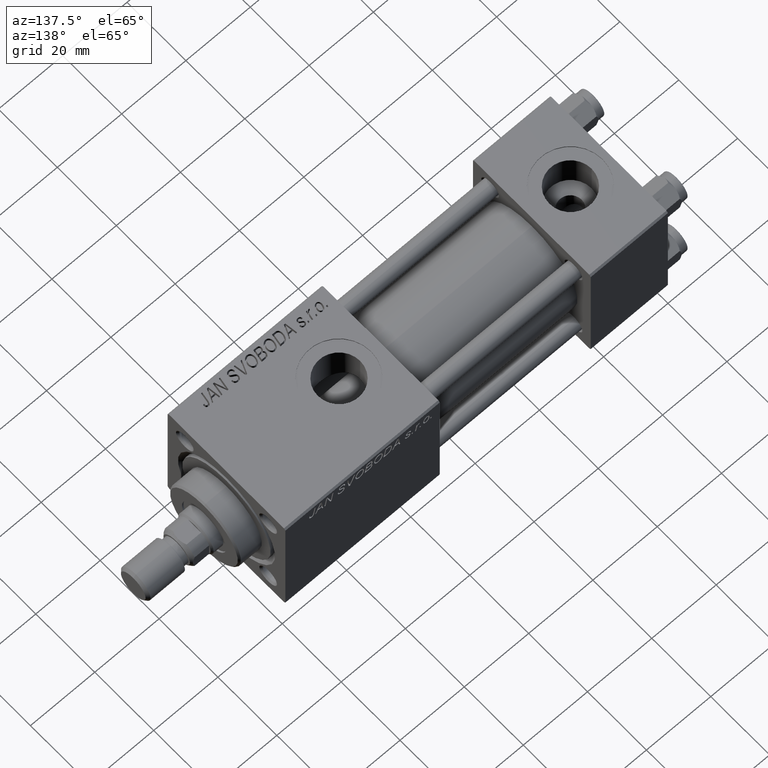
[diagram: clean part render]
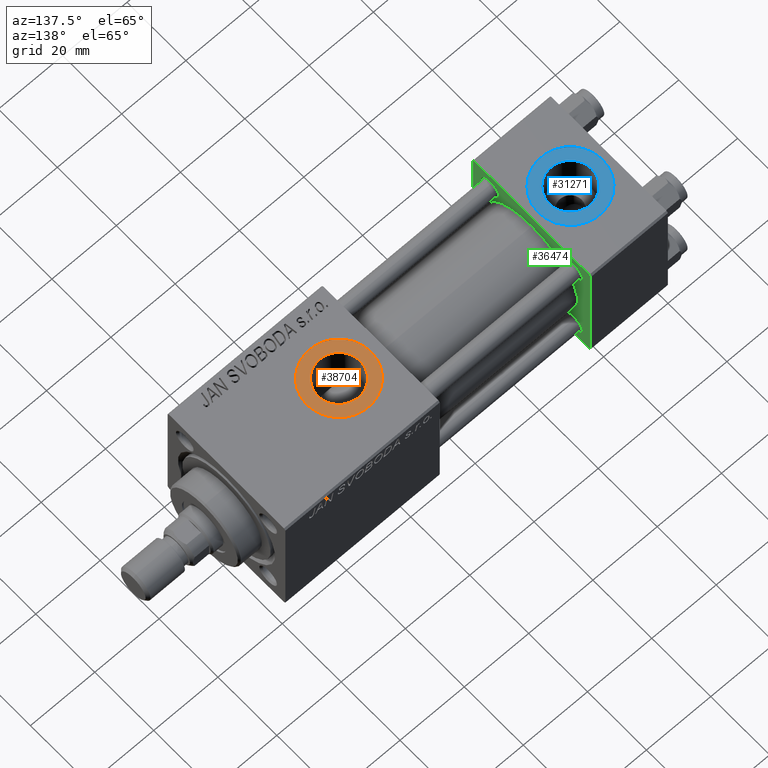
[diagram: same view with three faces highlighted in distinct colors, each labeled with its STEP entity id]
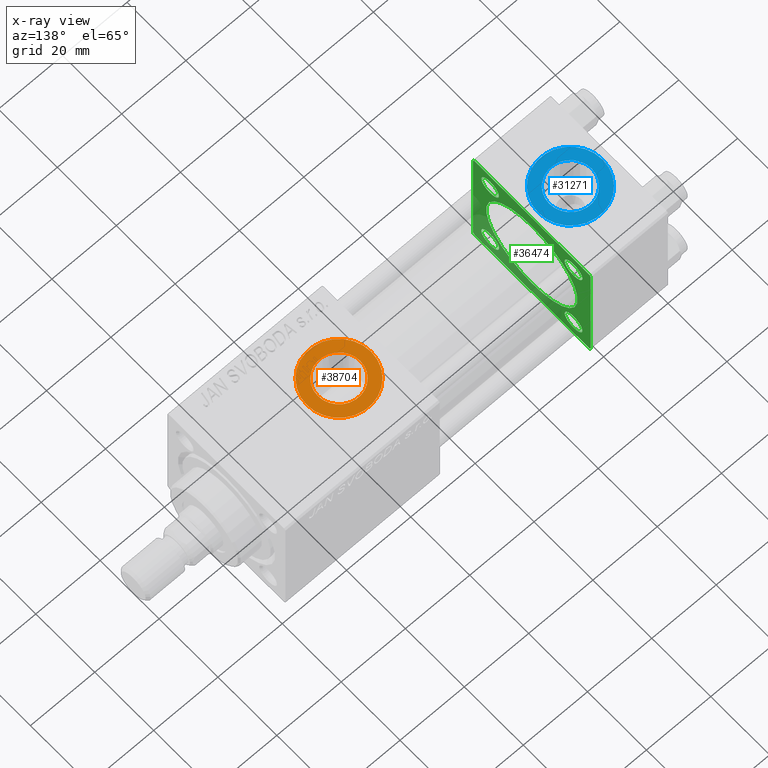
[diagram: x-ray of the same camera — body ghosted, the three highlighted faces saturated]
A machine part, auxiliary view with three faces highlighted in distinct colors.
The next image is the same camera in x-ray (body ghosted, the three faces saturated) — at least one of them is partly hidden behind the body in this view.
Their STEP definitions:

[orange] entity #38704 — the highlighted planar face has unit normal (0, 0, 1).
#3603 = EDGE_CURVE ( 'NONE', #16706, #14455, #50711, .T. ) ;
#4652 = CARTESIAN_POINT ( 'NONE',  ( 84.00000000000000000, -1.734723475976806897E-15, 19.80000000000000071 ) ) ;
#4914 = PLANE ( 'NONE',  #28643 ) ;
#5788 = ORIENTED_EDGE ( 'NONE', *, *, #50799, .T. ) ;
#6205 = DIRECTION ( 'NONE',  ( 1.000000000000000000, 0.000000000000000000, 0.000000000000000000 ) ) ;
#11821 = ORIENTED_EDGE ( 'NONE', *, *, #33528, .T. ) ;
#12574 = EDGE_CURVE ( 'NONE', #36461, #34232, #32161, .T. ) ;
#14026 = ORIENTED_EDGE ( 'NONE', *, *, #12574, .T. ) ;
#14455 = VERTEX_POINT ( 'NONE', #14683 ) ;
#14683 = CARTESIAN_POINT ( 'NONE',  ( 94.00000000000154898, -1.734723475976806897E-15, 19.80000000000000071 ) ) ;
#16272 = EDGE_LOOP ( 'NONE', ( #5788, #37460 ) ) ;
#16706 = VERTEX_POINT ( 'NONE', #19963 ) ;
#17561 = AXIS2_PLACEMENT_3D ( 'NONE', #35855, #19889, #39849 ) ;
#19889 = DIRECTION ( 'NONE',  ( -0.000000000000000000, -0.000000000000000000, -1.000000000000000000 ) ) ;
#19963 = CARTESIAN_POINT ( 'NONE',  ( 73.99999999999845102, -5.100766768292640183E-16, 19.80000000000000071 ) ) ;
#21134 = DIRECTION ( 'NONE',  ( 1.000000000000000000, 0.000000000000000000, -0.000000000000000000 ) ) ;
#24830 = DIRECTION ( 'NONE',  ( 0.000000000000000000, 0.000000000000000000, 1.000000000000000000 ) ) ;
#25447 = CARTESIAN_POINT ( 'NONE',  ( 77.41999999999846693, -1.734723475976806897E-15, 19.80000000000000071 ) ) ;
#25812 = EDGE_LOOP ( 'NONE', ( #14026, #11821 ) ) ;
#26137 = CARTESIAN_POINT ( 'NONE',  ( 84.00000000000000000, -1.734723475976806897E-15, 19.80000000000000071 ) ) ;
#28643 = AXIS2_PLACEMENT_3D ( 'NONE', #4652, #41085, #21134 ) ;
#29363 = FACE_BOUND ( 'NONE', #25812, .T. ) ;
#29444 = CIRCLE ( 'NONE', #17561, 6.580000000001542837 ) ;
#32161 = CIRCLE ( 'NONE', #46654, 6.580000000001542837 ) ;
#33063 = DIRECTION ( 'NONE',  ( 1.000000000000000000, 0.000000000000000000, 0.000000000000000000 ) ) ;
#33528 = EDGE_CURVE ( 'NONE', #34232, #36461, #29444, .T. ) ;
#33892 = DIRECTION ( 'NONE',  ( 1.000000000000000000, 0.000000000000000000, 0.000000000000000000 ) ) ;
#34232 = VERTEX_POINT ( 'NONE', #51885 ) ;
#35855 = CARTESIAN_POINT ( 'NONE',  ( 84.00000000000000000, -1.734723475976806897E-15, 19.80000000000000071 ) ) ;
#36461 = VERTEX_POINT ( 'NONE', #25447 ) ;
#37234 = AXIS2_PLACEMENT_3D ( 'NONE', #26137, #39167, #6205 ) ;
#37460 = ORIENTED_EDGE ( 'NONE', *, *, #3603, .T. ) ;
#38681 = CARTESIAN_POINT ( 'NONE',  ( 84.00000000000000000, -1.734723475976806897E-15, 19.80000000000000071 ) ) ;
#38704 = ADVANCED_FACE ( 'NONE', ( #29363, #52357 ), #4914, .T. ) ;
#39167 = DIRECTION ( 'NONE',  ( 0.000000000000000000, 0.000000000000000000, 1.000000000000000000 ) ) ;
#39849 = DIRECTION ( 'NONE',  ( 1.000000000000000000, 0.000000000000000000, 0.000000000000000000 ) ) ;
#41085 = DIRECTION ( 'NONE',  ( 0.000000000000000000, 0.000000000000000000, 1.000000000000000000 ) ) ;
#44038 = CIRCLE ( 'NONE', #37234, 10.00000000000154898 ) ;
#45046 = CARTESIAN_POINT ( 'NONE',  ( 84.00000000000000000, -1.734723475976806897E-15, 19.80000000000000071 ) ) ;
#46654 = AXIS2_PLACEMENT_3D ( 'NONE', #38681, #50388, #33892 ) ;
#50388 = DIRECTION ( 'NONE',  ( -0.000000000000000000, -0.000000000000000000, -1.000000000000000000 ) ) ;
#50711 = CIRCLE ( 'NONE', #51555, 10.00000000000154898 ) ;
#50799 = EDGE_CURVE ( 'NONE', #14455, #16706, #44038, .T. ) ;
#51555 = AXIS2_PLACEMENT_3D ( 'NONE', #45046, #24830, #33063 ) ;
#51885 = CARTESIAN_POINT ( 'NONE',  ( 90.58000000000154728, -9.289058821376599092E-16, 19.80000000000000071 ) ) ;
#52357 = FACE_OUTER_BOUND ( 'NONE', #16272, .T. ) ;

[blue] entity #31271 — the highlighted planar face has unit normal (0, 0, 1).
#572 = CARTESIAN_POINT ( 'NONE',  ( 18.57999999999999829, 1.540743955509788682E-30, 19.79999999999999716 ) ) ;
#3197 = ORIENTED_EDGE ( 'NONE', *, *, #13737, .T. ) ;
#3599 = CARTESIAN_POINT ( 'NONE',  ( 12.00000000000000000, 1.540743955509788682E-30, 19.79999999999999716 ) ) ;
#3624 = ORIENTED_EDGE ( 'NONE', *, *, #36955, .F. ) ;
#4297 = EDGE_LOOP ( 'NONE', ( #29928, #3624 ) ) ;
#4761 = EDGE_CURVE ( 'NONE', #5743, #52011, #19314, .T. ) ;
#5743 = VERTEX_POINT ( 'NONE', #572 ) ;
#6813 = DIRECTION ( 'NONE',  ( 0.000000000000000000, 0.000000000000000000, 1.000000000000000000 ) ) ;
#7070 = DIRECTION ( 'NONE',  ( 1.000000000000000000, 0.000000000000000000, 0.000000000000000000 ) ) ;
#7437 = AXIS2_PLACEMENT_3D ( 'NONE', #17052, #12272, #32738 ) ;
#9015 = AXIS2_PLACEMENT_3D ( 'NONE', #26690, #43184, #30945 ) ;
#9516 = ORIENTED_EDGE ( 'NONE', *, *, #32740, .T. ) ;
#12006 = DIRECTION ( 'NONE',  ( 0.000000000000000000, 0.000000000000000000, 1.000000000000000000 ) ) ;
#12272 = DIRECTION ( 'NONE',  ( 0.000000000000000000, 0.000000000000000000, 1.000000000000000000 ) ) ;
#13524 = CIRCLE ( 'NONE', #22887, 9.999999999999998224 ) ;
#13726 = DIRECTION ( 'NONE',  ( 1.000000000000000000, 0.000000000000000000, -0.000000000000000000 ) ) ;
#13737 = EDGE_CURVE ( 'NONE', #14570, #14307, #13524, .T. ) ;
#14307 = VERTEX_POINT ( 'NONE', #39277 ) ;
#14570 = VERTEX_POINT ( 'NONE', #39933 ) ;
#17052 = CARTESIAN_POINT ( 'NONE',  ( 12.00000000000000000, 1.540743955509788682E-30, 19.79999999999999716 ) ) ;
#18597 = CARTESIAN_POINT ( 'NONE',  ( 5.420000000000000817, 8.058175938389596335E-16, 19.79999999999999716 ) ) ;
#19237 = CIRCLE ( 'NONE', #48968, 6.579999999999999183 ) ;
#19314 = CIRCLE ( 'NONE', #7437, 6.579999999999999183 ) ;
#20033 = AXIS2_PLACEMENT_3D ( 'NONE', #49894, #41133, #13726 ) ;
#22887 = AXIS2_PLACEMENT_3D ( 'NONE', #48450, #12006, #28225 ) ;
#23609 = FACE_BOUND ( 'NONE', #4297, .T. ) ;
#24821 = EDGE_LOOP ( 'NONE', ( #9516, #3197 ) ) ;
#26690 = CARTESIAN_POINT ( 'NONE',  ( 12.00000000000000000, 1.540743955509788682E-30, 19.79999999999999716 ) ) ;
#28225 = DIRECTION ( 'NONE',  ( 1.000000000000000000, 0.000000000000000000, 0.000000000000000000 ) ) ;
#29160 = FACE_OUTER_BOUND ( 'NONE', #24821, .T. ) ;
#29928 = ORIENTED_EDGE ( 'NONE', *, *, #4761, .F. ) ;
#30945 = DIRECTION ( 'NONE',  ( 1.000000000000000000, 0.000000000000000000, 0.000000000000000000 ) ) ;
#31271 = ADVANCED_FACE ( 'NONE', ( #23609, #29160 ), #41387, .T. ) ;
#32738 = DIRECTION ( 'NONE',  ( 1.000000000000000000, 0.000000000000000000, 0.000000000000000000 ) ) ;
#32740 = EDGE_CURVE ( 'NONE', #14307, #14570, #39594, .T. ) ;
#36955 = EDGE_CURVE ( 'NONE', #52011, #5743, #19237, .T. ) ;
#39277 = CARTESIAN_POINT ( 'NONE',  ( 22.00000000000000000, 1.540743955509788682E-30, 19.79999999999999716 ) ) ;
#39594 = CIRCLE ( 'NONE', #9015, 9.999999999999998224 ) ;
#39933 = CARTESIAN_POINT ( 'NONE',  ( 2.000000000000003553, 1.224646799147354440E-15, 19.79999999999999716 ) ) ;
#41133 = DIRECTION ( 'NONE',  ( 0.000000000000000000, 0.000000000000000000, 1.000000000000000000 ) ) ;
#41387 = PLANE ( 'NONE',  #20033 ) ;
#43184 = DIRECTION ( 'NONE',  ( 0.000000000000000000, 0.000000000000000000, 1.000000000000000000 ) ) ;
#48450 = CARTESIAN_POINT ( 'NONE',  ( 12.00000000000000000, 1.540743955509788682E-30, 19.79999999999999716 ) ) ;
#48968 = AXIS2_PLACEMENT_3D ( 'NONE', #3599, #6813, #7070 ) ;
#49894 = CARTESIAN_POINT ( 'NONE',  ( 12.00000000000000000, 1.540743955509788682E-30, 19.79999999999999716 ) ) ;
#52011 = VERTEX_POINT ( 'NONE', #18597 ) ;

[green] entity #36474 — the highlighted planar face has unit normal (-1, 0, 0).
#25 = CARTESIAN_POINT ( 'NONE',  ( 24.00000000000000000, 19.50000000000000711, -20.00000000000000711 ) ) ;
#417 = DIRECTION ( 'NONE',  ( 0.000000000000000000, 0.000000000000000000, 1.000000000000000000 ) ) ;
#976 = CARTESIAN_POINT ( 'NONE',  ( 24.00000000000000000, 14.14999999999999858, -11.15000000000002700 ) ) ;
#1045 = CARTESIAN_POINT ( 'NONE',  ( 24.00000000000000000, 20.00000000000000000, -19.50000000000002132 ) ) ;
#1116 = CARTESIAN_POINT ( 'NONE',  ( 24.00000000000000000, 20.00000000000000000, -19.50000000000002132 ) ) ;
#1583 = VECTOR ( 'NONE', #31674, 1000.000000000000000 ) ;
#2041 = FACE_BOUND ( 'NONE', #32535, .T. ) ;
#2224 = DIRECTION ( 'NONE',  ( 1.000000000000000000, 0.000000000000000000, 0.000000000000000000 ) ) ;
#2529 = ORIENTED_EDGE ( 'NONE', *, *, #28932, .T. ) ;
#2827 = DIRECTION ( 'NONE',  ( 0.000000000000000000, 0.000000000000000000, 1.000000000000000000 ) ) ;
#3550 = CIRCLE ( 'NONE', #29014, 15.50000000000000000 ) ;
#3650 = LINE ( 'NONE', #40593, #23040 ) ;
#4034 = ORIENTED_EDGE ( 'NONE', *, *, #30178, .F. ) ;
#4043 = VERTEX_POINT ( 'NONE', #12139 ) ;
#4913 = VECTOR ( 'NONE', #30166, 999.9999999999998863 ) ;
#5194 = VERTEX_POINT ( 'NONE', #15813 ) ;
#5199 = CARTESIAN_POINT ( 'NONE',  ( 24.00000000000000000, -20.00000000000000355, 19.49999999999998224 ) ) ;
#5234 = DIRECTION ( 'NONE',  ( -0.000000000000000000, 0.000000000000000000, 1.000000000000000000 ) ) ;
#5238 = DIRECTION ( 'NONE',  ( -1.000000000000000000, -0.000000000000000000, -0.000000000000000000 ) ) ;
#5502 = CARTESIAN_POINT ( 'NONE',  ( 24.00000000000000000, 14.14999999999999858, 14.15000000000000036 ) ) ;
#5665 = EDGE_LOOP ( 'NONE', ( #39818, #21558 ) ) ;
#5766 = FACE_BOUND ( 'NONE', #42647, .T. ) ;
#6948 = DIRECTION ( 'NONE',  ( -1.000000000000000000, -0.000000000000000000, -0.000000000000000000 ) ) ;
#7084 = DIRECTION ( 'NONE',  ( -1.000000000000000000, -0.000000000000000000, -0.000000000000000000 ) ) ;
#7384 = ORIENTED_EDGE ( 'NONE', *, *, #10664, .T. ) ;
#7591 = CARTESIAN_POINT ( 'NONE',  ( 24.00000000000000000, -2.602085213965210642E-15, 15.50000000000000000 ) ) ;
#8245 = CIRCLE ( 'NONE', #44774, 2.999999999999976463 ) ;
#8630 = CARTESIAN_POINT ( 'NONE',  ( 24.00000000000000000, -2.602085213965210642E-15, 0.000000000000000000 ) ) ;
#8744 = EDGE_CURVE ( 'NONE', #22490, #4043, #8245, .T. ) ;
#9174 = DIRECTION ( 'NONE',  ( -1.000000000000000000, -0.000000000000000000, -0.000000000000000000 ) ) ;
#9467 = CARTESIAN_POINT ( 'NONE',  ( 24.00000000000000000, -19.49999999999999289, 19.99999999999998934 ) ) ;
#10219 = LINE ( 'NONE', #47194, #4913 ) ;
#10557 = EDGE_CURVE ( 'NONE', #4043, #22490, #15960, .T. ) ;
#10664 = EDGE_CURVE ( 'NONE', #41753, #38083, #10219, .T. ) ;
#11567 = CIRCLE ( 'NONE', #42969, 15.50000000000000000 ) ;
#12094 = CARTESIAN_POINT ( 'NONE',  ( 24.00000000000000000, -20.00000000000000355, 19.99999999999998934 ) ) ;
#12139 = CARTESIAN_POINT ( 'NONE',  ( 24.00000000000000000, 14.14999999999999858, -17.14999999999997726 ) ) ;
#12524 = VERTEX_POINT ( 'NONE', #45346 ) ;
#13423 = EDGE_CURVE ( 'NONE', #14050, #15399, #39010, .T. ) ;
#14050 = VERTEX_POINT ( 'NONE', #36902 ) ;
#14156 = AXIS2_PLACEMENT_3D ( 'NONE', #39073, #34815, #18333 ) ;
#14404 = DIRECTION ( 'NONE',  ( 0.000000000000000000, 0.000000000000000000, 1.000000000000000000 ) ) ;
#14741 = CARTESIAN_POINT ( 'NONE',  ( 24.00000000000000000, 20.00000000000000000, 20.00000000000000000 ) ) ;
#14973 = CARTESIAN_POINT ( 'NONE',  ( 24.00000000000000000, 19.50000000000000000, 20.00000000000000000 ) ) ;
#15147 = CIRCLE ( 'NONE', #51681, 3.000000000000004441 ) ;
#15357 = ORIENTED_EDGE ( 'NONE', *, *, #41284, .T. ) ;
#15399 = VERTEX_POINT ( 'NONE', #21423 ) ;
#15813 = CARTESIAN_POINT ( 'NONE',  ( 24.00000000000000000, -20.00000000000000355, 19.49999999999998224 ) ) ;
#15821 = DIRECTION ( 'NONE',  ( 0.000000000000000000, 8.673617379884036705E-17, -1.000000000000000000 ) ) ;
#15960 = CIRCLE ( 'NONE', #45692, 2.999999999999976463 ) ;
#16091 = DIRECTION ( 'NONE',  ( -1.000000000000000000, -0.000000000000000000, -0.000000000000000000 ) ) ;
#16592 = EDGE_LOOP ( 'NONE', ( #42497, #2529 ) ) ;
#16635 = DIRECTION ( 'NONE',  ( 0.000000000000000000, 0.000000000000000000, 1.000000000000000000 ) ) ;
#16717 = VERTEX_POINT ( 'NONE', #47660 ) ;
#16851 = VERTEX_POINT ( 'NONE', #28292 ) ;
#17138 = LINE ( 'NONE', #50642, #23607 ) ;
#17453 = CARTESIAN_POINT ( 'NONE',  ( 24.00000000000000000, 0.000000000000000000, 0.000000000000000000 ) ) ;
#17504 = EDGE_CURVE ( 'NONE', #20164, #16851, #3650, .T. ) ;
#17554 = ORIENTED_EDGE ( 'NONE', *, *, #17504, .F. ) ;
#18333 = DIRECTION ( 'NONE',  ( 0.000000000000000000, 0.000000000000000000, 1.000000000000000000 ) ) ;
#18447 = DIRECTION ( 'NONE',  ( 0.000000000000000000, 0.000000000000000000, 1.000000000000000000 ) ) ;
#18635 = VERTEX_POINT ( 'NONE', #51226 ) ;
#18773 = EDGE_CURVE ( 'NONE', #35717, #36253, #3550, .T. ) ;
#18967 = CARTESIAN_POINT ( 'NONE',  ( 24.00000000000000000, -2.602085213965210642E-15, 0.000000000000000000 ) ) ;
#19271 = EDGE_LOOP ( 'NONE', ( #25188, #27410 ) ) ;
#19369 = CARTESIAN_POINT ( 'NONE',  ( 24.00000000000000000, -7.038826752868131828E-16, -15.50000000000000000 ) ) ;
#19815 = CARTESIAN_POINT ( 'NONE',  ( 24.00000000000000000, 14.14999999999999858, 14.15000000000000036 ) ) ;
#20164 = VERTEX_POINT ( 'NONE', #25 ) ;
#20218 = CIRCLE ( 'NONE', #42281, 3.000000000000004441 ) ;
#21407 = DIRECTION ( 'NONE',  ( -1.000000000000000000, -0.000000000000000000, -0.000000000000000000 ) ) ;
#21423 = CARTESIAN_POINT ( 'NONE',  ( 24.00000000000000000, -14.14999999999999503, -17.15000000000000924 ) ) ;
#21558 = ORIENTED_EDGE ( 'NONE', *, *, #13423, .T. ) ;
#21964 = VERTEX_POINT ( 'NONE', #31759 ) ;
#21990 = DIRECTION ( 'NONE',  ( -1.000000000000000000, 0.000000000000000000, -0.000000000000000000 ) ) ;
#22490 = VERTEX_POINT ( 'NONE', #976 ) ;
#22498 = ORIENTED_EDGE ( 'NONE', *, *, #8744, .T. ) ;
#22544 = VERTEX_POINT ( 'NONE', #9467 ) ;
#22869 = CARTESIAN_POINT ( 'NONE',  ( 24.00000000000000000, 20.00000000000000000, 19.49999999999999289 ) ) ;
#22933 = LINE ( 'NONE', #39149, #1583 ) ;
#23040 = VECTOR ( 'NONE', #36862, 1000.000000000000000 ) ;
#23430 = CARTESIAN_POINT ( 'NONE',  ( 24.00000000000000000, 14.14999999999999858, -14.15000000000000036 ) ) ;
#23607 = VECTOR ( 'NONE', #37870, 1000.000000000000000 ) ;
#23777 = DIRECTION ( 'NONE',  ( 0.000000000000000000, 0.000000000000000000, -1.000000000000000000 ) ) ;
#24505 = ORIENTED_EDGE ( 'NONE', *, *, #18773, .F. ) ;
#24857 = LINE ( 'NONE', #12094, #40408 ) ;
#25188 = ORIENTED_EDGE ( 'NONE', *, *, #39681, .T. ) ;
#26239 = FACE_BOUND ( 'NONE', #19271, .T. ) ;
#26760 = AXIS2_PLACEMENT_3D ( 'NONE', #5502, #5238, #33419 ) ;
#27410 = ORIENTED_EDGE ( 'NONE', *, *, #51491, .T. ) ;
#27494 = EDGE_CURVE ( 'NONE', #20164, #32996, #50503, .T. ) ;
#27914 = ORIENTED_EDGE ( 'NONE', *, *, #40081, .T. ) ;
#28292 = CARTESIAN_POINT ( 'NONE',  ( 24.00000000000000000, -19.50000000000000711, -20.00000000000000000 ) ) ;
#28932 = EDGE_CURVE ( 'NONE', #21964, #16717, #37763, .T. ) ;
#29014 = AXIS2_PLACEMENT_3D ( 'NONE', #18967, #2224, #18447 ) ;
#29647 = CARTESIAN_POINT ( 'NONE',  ( 24.00000000000000000, -14.14999999999999503, -14.15000000000000391 ) ) ;
#29925 = DIRECTION ( 'NONE',  ( -0.000000000000000000, -0.7071067811865500152, -0.7071067811865451302 ) ) ;
#30166 = DIRECTION ( 'NONE',  ( 0.000000000000000000, -0.7071067811865425767, 0.7071067811865525687 ) ) ;
#30178 = EDGE_CURVE ( 'NONE', #41753, #32996, #39214, .T. ) ;
#30219 = PLANE ( 'NONE',  #31116 ) ;
#31116 = AXIS2_PLACEMENT_3D ( 'NONE', #17453, #21990, #5234 ) ;
#31674 = DIRECTION ( 'NONE',  ( 0.000000000000000000, 0.7071067811865401342, -0.7071067811865549002 ) ) ;
#31759 = CARTESIAN_POINT ( 'NONE',  ( 24.00000000000000000, 14.14999999999999858, 17.14999999999997726 ) ) ;
#32152 = ORIENTED_EDGE ( 'NONE', *, *, #47858, .T. ) ;
#32535 = EDGE_LOOP ( 'NONE', ( #24505, #42278 ) ) ;
#32996 = VERTEX_POINT ( 'NONE', #1116 ) ;
#33386 = EDGE_LOOP ( 'NONE', ( #17554, #52133, #4034, #7384, #27914, #32152, #44910, #15357 ) ) ;
#33389 = ORIENTED_EDGE ( 'NONE', *, *, #10557, .T. ) ;
#33415 = FACE_BOUND ( 'NONE', #5665, .T. ) ;
#33419 = DIRECTION ( 'NONE',  ( 0.000000000000000000, 0.000000000000000000, 1.000000000000000000 ) ) ;
#33456 = EDGE_CURVE ( 'NONE', #15399, #14050, #52405, .T. ) ;
#33470 = DIRECTION ( 'NONE',  ( -0.000000000000000000, 0.7071067811865524577, 0.7071067811865426878 ) ) ;
#34815 = DIRECTION ( 'NONE',  ( -1.000000000000000000, -0.000000000000000000, -0.000000000000000000 ) ) ;
#35709 = EDGE_CURVE ( 'NONE', #16717, #21964, #43839, .T. ) ;
#35717 = VERTEX_POINT ( 'NONE', #7591 ) ;
#35769 = EDGE_CURVE ( 'NONE', #5194, #18635, #24857, .T. ) ;
#35837 = EDGE_CURVE ( 'NONE', #36253, #35717, #11567, .T. ) ;
#35973 = DIRECTION ( 'NONE',  ( 0.000000000000000000, 0.000000000000000000, 1.000000000000000000 ) ) ;
#36229 = CARTESIAN_POINT ( 'NONE',  ( 24.00000000000000000, -14.14999999999999503, 14.15000000000000391 ) ) ;
#36253 = VERTEX_POINT ( 'NONE', #19369 ) ;
#36474 = ADVANCED_FACE ( 'NONE', ( #33415, #5766, #26239, #38735, #2041, #50178 ), #30219, .F. ) ;
#36862 = DIRECTION ( 'NONE',  ( 0.000000000000000000, -1.000000000000000000, 1.734723475976807094E-16 ) ) ;
#36902 = CARTESIAN_POINT ( 'NONE',  ( 24.00000000000000000, -14.14999999999999503, -11.15000000000000036 ) ) ;
#37636 = LINE ( 'NONE', #5199, #39102 ) ;
#37763 = CIRCLE ( 'NONE', #26760, 2.999999999999973355 ) ;
#37870 = DIRECTION ( 'NONE',  ( 0.000000000000000000, -1.000000000000000000, -2.602085213965210149E-16 ) ) ;
#38083 = VERTEX_POINT ( 'NONE', #14973 ) ;
#38205 = CARTESIAN_POINT ( 'NONE',  ( 24.00000000000000000, -14.14999999999999503, 17.15000000000000924 ) ) ;
#38735 = FACE_BOUND ( 'NONE', #16592, .T. ) ;
#39010 = CIRCLE ( 'NONE', #47527, 3.000000000000004441 ) ;
#39073 = CARTESIAN_POINT ( 'NONE',  ( 24.00000000000000000, -14.14999999999999503, -14.15000000000000391 ) ) ;
#39102 = VECTOR ( 'NONE', #29925, 1000.000000000000114 ) ;
#39149 = CARTESIAN_POINT ( 'NONE',  ( 24.00000000000000000, -19.50000000000000711, -20.00000000000000000 ) ) ;
#39214 = LINE ( 'NONE', #14741, #48025 ) ;
#39681 = EDGE_CURVE ( 'NONE', #12524, #51224, #20218, .T. ) ;
#39818 = ORIENTED_EDGE ( 'NONE', *, *, #33456, .T. ) ;
#40081 = EDGE_CURVE ( 'NONE', #38083, #22544, #17138, .T. ) ;
#40284 = DIRECTION ( 'NONE',  ( 0.000000000000000000, 0.000000000000000000, 1.000000000000000000 ) ) ;
#40408 = VECTOR ( 'NONE', #15821, 1000.000000000000000 ) ;
#40593 = CARTESIAN_POINT ( 'NONE',  ( 24.00000000000000000, 20.00000000000000000, -20.00000000000000711 ) ) ;
#40816 = DIRECTION ( 'NONE',  ( 0.000000000000000000, 0.000000000000000000, 1.000000000000000000 ) ) ;
#41284 = EDGE_CURVE ( 'NONE', #18635, #16851, #22933, .T. ) ;
#41350 = CARTESIAN_POINT ( 'NONE',  ( 24.00000000000000000, 14.14999999999999858, -14.15000000000000036 ) ) ;
#41753 = VERTEX_POINT ( 'NONE', #22869 ) ;
#42278 = ORIENTED_EDGE ( 'NONE', *, *, #35837, .F. ) ;
#42281 = AXIS2_PLACEMENT_3D ( 'NONE', #52029, #7084, #2827 ) ;
#42497 = ORIENTED_EDGE ( 'NONE', *, *, #35709, .T. ) ;
#42647 = EDGE_LOOP ( 'NONE', ( #33389, #22498 ) ) ;
#42969 = AXIS2_PLACEMENT_3D ( 'NONE', #8630, #44284, #40284 ) ;
#43698 = DIRECTION ( 'NONE',  ( -1.000000000000000000, -0.000000000000000000, -0.000000000000000000 ) ) ;
#43839 = CIRCLE ( 'NONE', #50641, 2.999999999999973355 ) ;
#44284 = DIRECTION ( 'NONE',  ( 1.000000000000000000, 0.000000000000000000, 0.000000000000000000 ) ) ;
#44485 = VECTOR ( 'NONE', #33470, 1000.000000000000000 ) ;
#44774 = AXIS2_PLACEMENT_3D ( 'NONE', #23430, #6948, #14404 ) ;
#44910 = ORIENTED_EDGE ( 'NONE', *, *, #35769, .T. ) ;
#45346 = CARTESIAN_POINT ( 'NONE',  ( 24.00000000000000000, -14.14999999999999503, 11.15000000000000036 ) ) ;
#45692 = AXIS2_PLACEMENT_3D ( 'NONE', #41350, #21407, #417 ) ;
#47194 = CARTESIAN_POINT ( 'NONE',  ( 24.00000000000000000, 19.50000000000000000, 20.00000000000000000 ) ) ;
#47527 = AXIS2_PLACEMENT_3D ( 'NONE', #29647, #9174, #16635 ) ;
#47660 = CARTESIAN_POINT ( 'NONE',  ( 24.00000000000000000, 14.14999999999999858, 11.15000000000002700 ) ) ;
#47858 = EDGE_CURVE ( 'NONE', #22544, #5194, #37636, .T. ) ;
#48025 = VECTOR ( 'NONE', #23777, 1000.000000000000000 ) ;
#50178 = FACE_OUTER_BOUND ( 'NONE', #33386, .T. ) ;
#50503 = LINE ( 'NONE', #1045, #44485 ) ;
#50641 = AXIS2_PLACEMENT_3D ( 'NONE', #19815, #16091, #40816 ) ;
#50642 = CARTESIAN_POINT ( 'NONE',  ( 24.00000000000000000, 20.00000000000000000, 20.00000000000000000 ) ) ;
#51224 = VERTEX_POINT ( 'NONE', #38205 ) ;
#51226 = CARTESIAN_POINT ( 'NONE',  ( 24.00000000000000000, -20.00000000000000000, -19.49999999999999645 ) ) ;
#51491 = EDGE_CURVE ( 'NONE', #51224, #12524, #15147, .T. ) ;
#51681 = AXIS2_PLACEMENT_3D ( 'NONE', #36229, #43698, #35973 ) ;
#52029 = CARTESIAN_POINT ( 'NONE',  ( 24.00000000000000000, -14.14999999999999503, 14.15000000000000391 ) ) ;
#52133 = ORIENTED_EDGE ( 'NONE', *, *, #27494, .T. ) ;
#52405 = CIRCLE ( 'NONE', #14156, 3.000000000000004441 ) ;